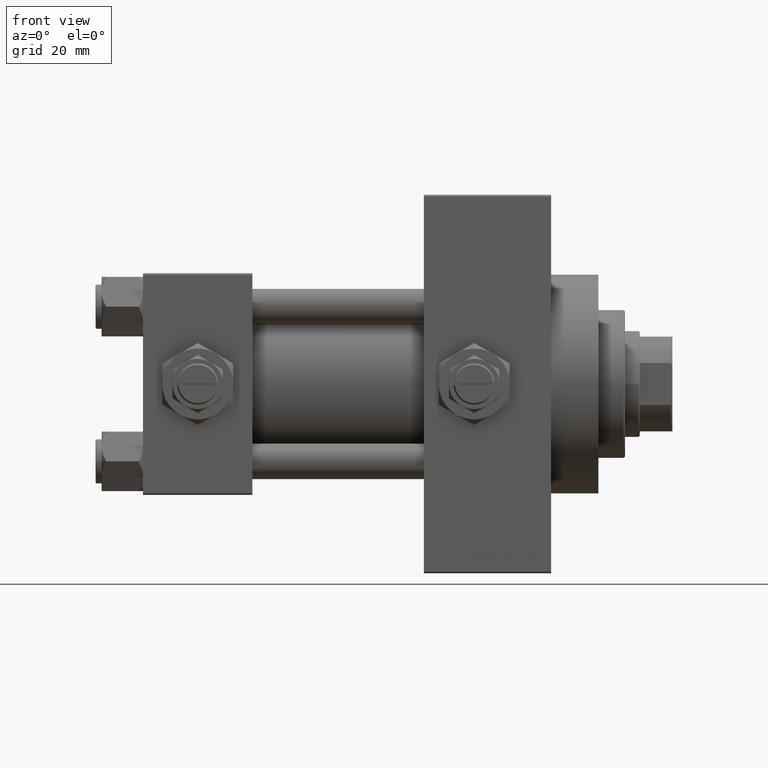
[diagram: clean part render]
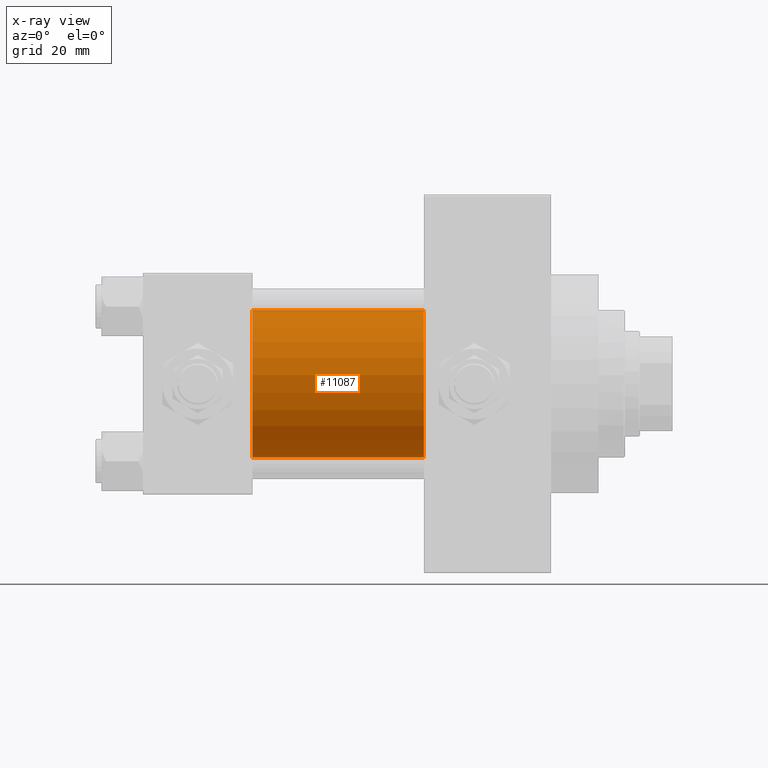
[diagram: x-ray — body ghosted, one internal face saturated and labeled with its STEP entity id]
A machine part, front view, then the same camera in x-ray: the body is ghosted and one INTERNAL B-rep face — a face not visible from any outside direction — is saturated and labeled: STEP entity #11087.
In plain terms, the highlighted cylindrical surface (partial cylindrical patch) has radius 25 mm, axis along (-1, -0, -0).
Its self-contained STEP definition (entity closure, byte-faithful):
#666 = LINE ( 'NONE', #4674, #8740 ) ;
#2306 = CARTESIAN_POINT ( 'NONE',  ( 95.00000000000000000, -2.602085213965210642E-15, 25.00000000000000000 ) ) ;
#2878 = AXIS2_PLACEMENT_3D ( 'NONE', #49411, #41894, #15082 ) ;
#4351 = EDGE_CURVE ( 'NONE', #26919, #35417, #666, .T. ) ;
#4488 = CIRCLE ( 'NONE', #2878, 25.00000000000000000 ) ;
#4674 = CARTESIAN_POINT ( 'NONE',  ( 95.00000000000000000, -2.602085213965210642E-15, 25.00000000000000000 ) ) ;
#5136 = EDGE_CURVE ( 'NONE', #26919, #24606, #21577, .T. ) ;
#6822 = VERTEX_POINT ( 'NONE', #29977 ) ;
#7053 = CARTESIAN_POINT ( 'NONE',  ( 95.00000000000000000, 4.595317839031718093E-16, -25.00000000000000000 ) ) ;
#8439 = DIRECTION ( 'NONE',  ( -1.000000000000000000, -0.000000000000000000, -0.000000000000000000 ) ) ;
#8740 = VECTOR ( 'NONE', #8439, 1000.000000000000000 ) ;
#8988 = AXIS2_PLACEMENT_3D ( 'NONE', #18558, #15048, #37606 ) ;
#11087 = ADVANCED_FACE ( 'NONE', ( #29849 ), #45118, .F. ) ;
#11468 = ORIENTED_EDGE ( 'NONE', *, *, #4351, .F. ) ;
#13800 = VECTOR ( 'NONE', #17111, 1000.000000000000000 ) ;
#15048 = DIRECTION ( 'NONE',  ( -1.000000000000000000, -0.000000000000000000, -0.000000000000000000 ) ) ;
#15082 = DIRECTION ( 'NONE',  ( 0.000000000000000000, 0.000000000000000000, -1.000000000000000000 ) ) ;
#17111 = DIRECTION ( 'NONE',  ( -1.000000000000000000, -0.000000000000000000, -0.000000000000000000 ) ) ;
#18558 = CARTESIAN_POINT ( 'NONE',  ( 95.00000000000000000, -2.602085213965210642E-15, 0.000000000000000000 ) ) ;
#18682 = ORIENTED_EDGE ( 'NONE', *, *, #24634, .F. ) ;
#19966 = CARTESIAN_POINT ( 'NONE',  ( 95.00000000000000000, -2.602085213965210642E-15, 0.000000000000000000 ) ) ;
#20219 = DIRECTION ( 'NONE',  ( 1.000000000000000000, 0.000000000000000000, 0.000000000000000000 ) ) ;
#21202 = ORIENTED_EDGE ( 'NONE', *, *, #5136, .T. ) ;
#21577 = CIRCLE ( 'NONE', #39199, 25.00000000000000000 ) ;
#22368 = CARTESIAN_POINT ( 'NONE',  ( 37.00000000000000000, -2.602085213965210642E-15, 25.00000000000000000 ) ) ;
#24606 = VERTEX_POINT ( 'NONE', #7053 ) ;
#24634 = EDGE_CURVE ( 'NONE', #35417, #6822, #4488, .T. ) ;
#26919 = VERTEX_POINT ( 'NONE', #2306 ) ;
#29849 = FACE_OUTER_BOUND ( 'NONE', #49260, .T. ) ;
#29977 = CARTESIAN_POINT ( 'NONE',  ( 37.00000000000000000, 4.595317839031718093E-16, -25.00000000000000000 ) ) ;
#31518 = DIRECTION ( 'NONE',  ( 0.000000000000000000, 0.000000000000000000, -1.000000000000000000 ) ) ;
#32403 = LINE ( 'NONE', #36163, #13800 ) ;
#33145 = ORIENTED_EDGE ( 'NONE', *, *, #46722, .T. ) ;
#35417 = VERTEX_POINT ( 'NONE', #22368 ) ;
#36163 = CARTESIAN_POINT ( 'NONE',  ( 95.00000000000000000, 4.595317839031718093E-16, -25.00000000000000000 ) ) ;
#37606 = DIRECTION ( 'NONE',  ( 0.000000000000000000, 0.000000000000000000, 1.000000000000000000 ) ) ;
#39199 = AXIS2_PLACEMENT_3D ( 'NONE', #19966, #20219, #31518 ) ;
#41894 = DIRECTION ( 'NONE',  ( 1.000000000000000000, 0.000000000000000000, 0.000000000000000000 ) ) ;
#45118 = CYLINDRICAL_SURFACE ( 'NONE', #8988, 25.00000000000000000 ) ;
#46722 = EDGE_CURVE ( 'NONE', #24606, #6822, #32403, .T. ) ;
#49260 = EDGE_LOOP ( 'NONE', ( #21202, #33145, #18682, #11468 ) ) ;
#49411 = CARTESIAN_POINT ( 'NONE',  ( 37.00000000000000000, -2.602085213965210642E-15, 0.000000000000000000 ) ) ;